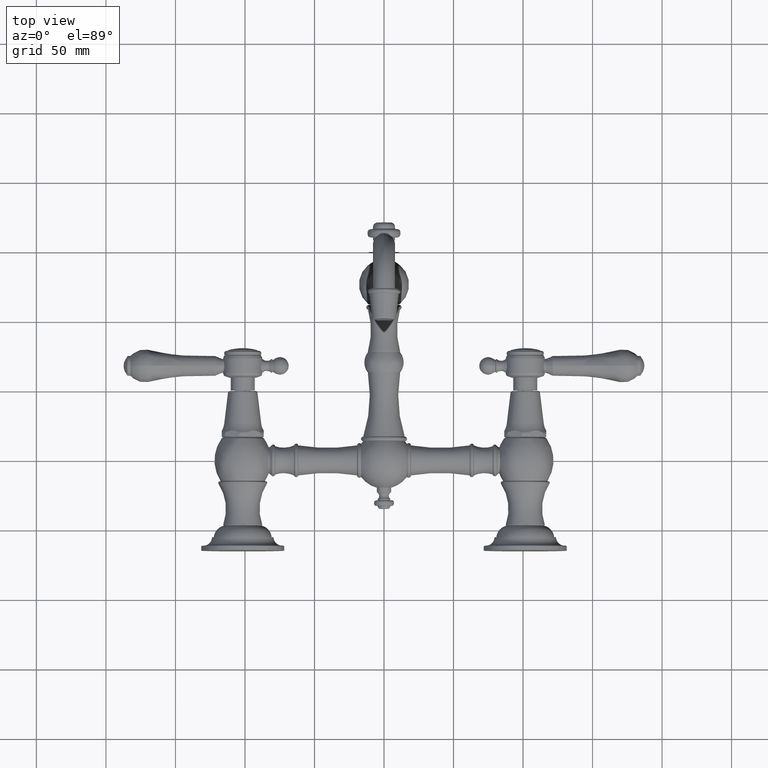
[diagram: clean part render]
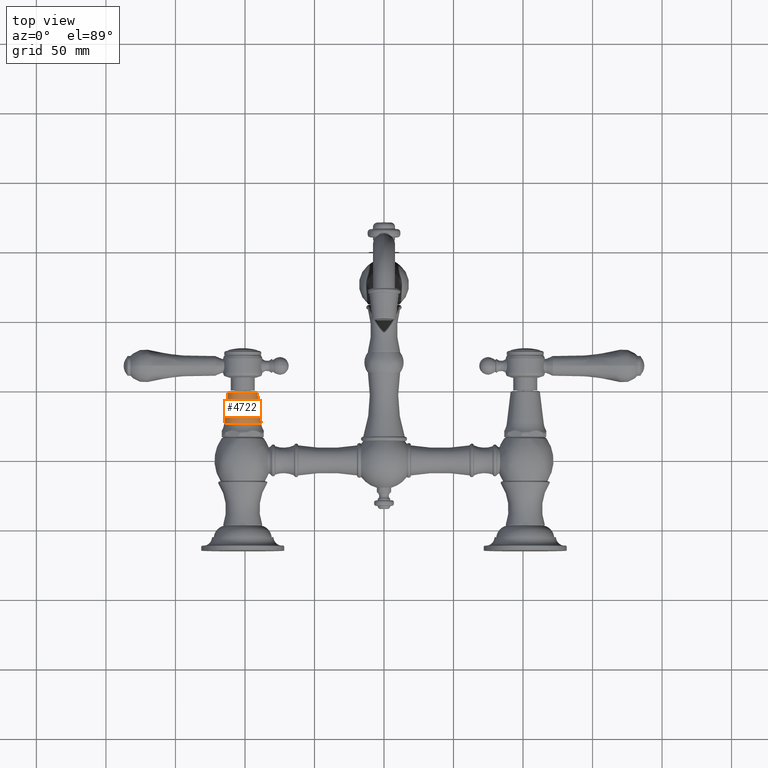
[diagram: same view with one face highlighted and labeled with its STEP entity id]
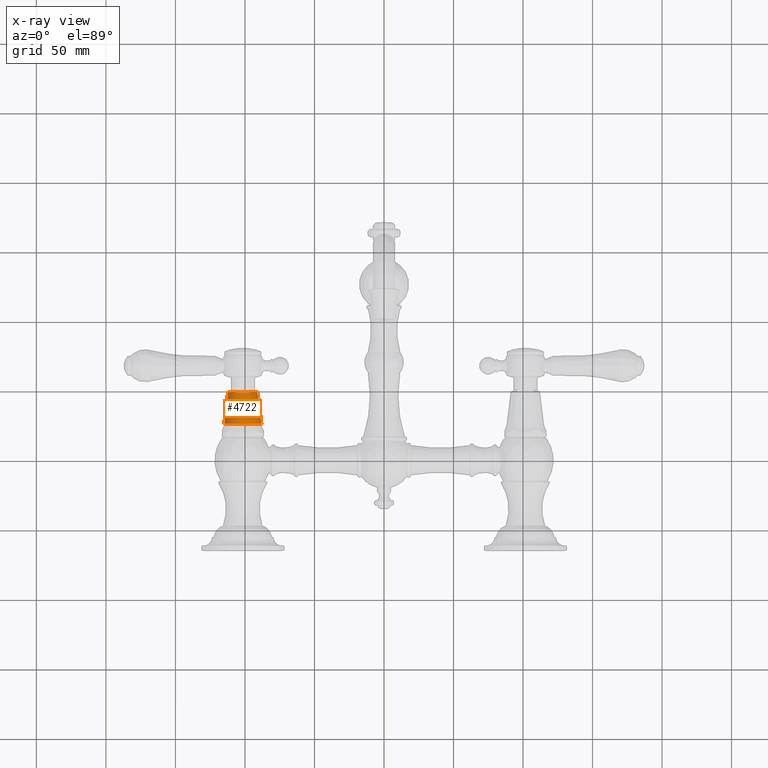
[diagram: x-ray of the same camera — body ghosted, the highlighted face saturated]
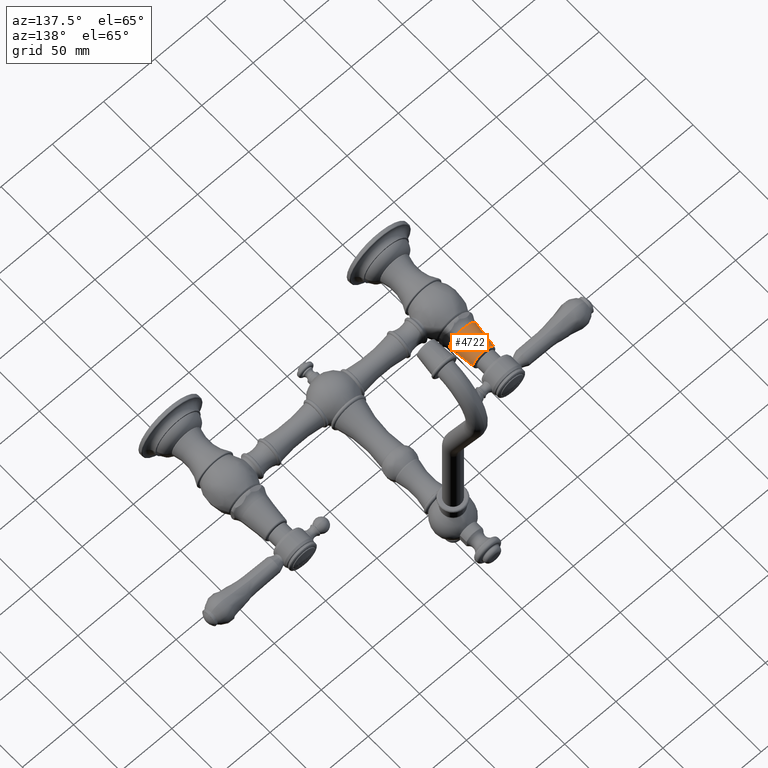
[diagram: same view with one face highlighted and labeled with its STEP entity id]
A machine part, top view. The second image highlights one B-rep face of the part: STEP entity #4722.
The next image is the same camera in x-ray: the body ghosted, the highlighted face saturated — about 0% of this face is hidden behind the body in this view.
A second angle (auxiliary view) of the same face is appended — the face is thin or edge-on in the first view.
In plain terms, the highlighted conical surface has half-angle 6.925 deg.
Its self-contained STEP definition (entity closure, byte-faithful):
#1208=DIRECTION('',(-1.205682364734E-1,9.927050419705E-1,0.E0));
#1209=VECTOR('',#1208,8.895174039520E-1);
#1210=CARTESIAN_POINT('',(-3.475617203195E0,1.036E0,0.E0));
#1211=LINE('',#1210,#1209);
#1215=DIRECTION('',(1.205682364734E-1,9.927050419705E-1,0.E0));
#1216=VECTOR('',#1215,8.895174039520E-1);
#1217=CARTESIAN_POINT('',(-4.524382796805E0,1.036E0,0.E0));
#1218=LINE('',#1217,#1216);
#1230=CARTESIAN_POINT('',(-4.E0,1.036E0,0.E0));
#1231=DIRECTION('',(0.E0,-1.E0,0.E0));
#1232=DIRECTION('',(1.E0,0.E0,0.E0));
#1233=AXIS2_PLACEMENT_3D('',#1230,#1231,#1232);
#1238=CARTESIAN_POINT('',(-4.E0,1.919028411824E0,0.E0));
#1239=DIRECTION('',(0.E0,-1.E0,0.E0));
#1240=DIRECTION('',(1.E0,0.E0,0.E0));
#1241=AXIS2_PLACEMENT_3D('',#1238,#1239,#1240);
#3924=CARTESIAN_POINT('',(-3.475617203195E0,1.036E0,0.E0));
#3925=CARTESIAN_POINT('',(-3.582864747901E0,1.919028411824E0,0.E0));
#3926=VERTEX_POINT('',#3924);
#3927=VERTEX_POINT('',#3925);
#3930=CARTESIAN_POINT('',(-4.524382796805E0,1.036E0,0.E0));
#3931=CARTESIAN_POINT('',(-4.417135252099E0,1.919028411824E0,0.E0));
#3932=VERTEX_POINT('',#3930);
#3933=VERTEX_POINT('',#3931);
#4710=CARTESIAN_POINT('',(-4.E0,1.477514205912E0,0.E0));
#4711=DIRECTION('',(0.E0,-1.E0,0.E0));
#4712=DIRECTION('',(-1.E0,0.E0,0.E0));
#4713=AXIS2_PLACEMENT_3D('',#4710,#4711,#4712);
#4714=CONICAL_SURFACE('',#4713,4.707590244520E-1,6.924898244163E0);
#4715=ORIENTED_EDGE('',*,*,#4693,.F.);
#4716=ORIENTED_EDGE('',*,*,#4561,.T.);
#4717=ORIENTED_EDGE('',*,*,#4697,.T.);
#4719=ORIENTED_EDGE('',*,*,#4718,.F.);
#4720=EDGE_LOOP('',(#4715,#4716,#4717,#4719));
#4721=FACE_OUTER_BOUND('',#4720,.F.);
#1234=CIRCLE('',#1233,5.243827968054E-1);
#1242=CIRCLE('',#1241,4.171352520985E-1);
#4561=EDGE_CURVE('',#3926,#3932,#1234,.T.);
#4693=EDGE_CURVE('',#3926,#3927,#1211,.T.);
#4697=EDGE_CURVE('',#3932,#3933,#1218,.T.);
#4718=EDGE_CURVE('',#3927,#3933,#1242,.T.);
#4722=ADVANCED_FACE('',(#4721),#4714,.T.);